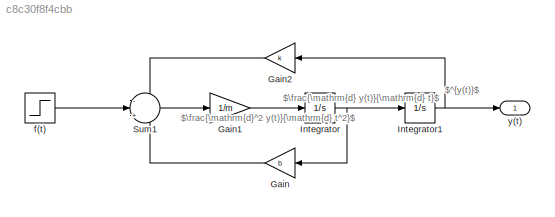
MODEL slx_c8c30f8f4cbb
KIND model
CONFIG AbsTol = auto
CONFIG EnableMultiTasking = off
CONFIG FixedStep = auto
CONFIG MaxStep = auto
CONFIG MinStep = auto
CONFIG RelTol = 1e-3
CONFIG SampleTimeConstraint = Unconstrained
CONFIG SolverName = VariableStepAuto
CONFIG StartTime = 0.0
CONFIG StopTime = 0.1
BLOCK [Gain] Gain
  Gain = b
BLOCK [Gain] Gain1
  Gain = 1/m
BLOCK [Gain] Gain2
  Gain = k
BLOCK [Integrator] Integrator
BLOCK [Integrator] Integrator1
BLOCK [Sum] Sum1
  Inputs = -|+|-
BLOCK [Step] f(t)
  After = f_final
  Before = f_inicial
  SampleTime = 0
  Time = t_inicial
BLOCK [Outport] y(t)
ANNOTATION (root): $\frac{\mathrm{d} y(t)}{\mathrm{d} t}$
ANNOTATION (root): $\frac{\mathrm{d}^2 y(t)}{\mathrm{d} t^2}$
ANNOTATION (root): $^{y(t)}$
LINE Gain1:1 -> Integrator:1
LINE Gain2:1 -> Sum1:1
LINE Gain:1 -> Sum1:3
NET Integrator1:1 -> Gain2:1, y(t):1
NET Integrator:1 -> Gain:1, Integrator1:1
LINE Sum1:1 -> Gain1:1
LINE f(t):1 -> Sum1:2
note: NET lines group one-source signal fan-out (src -> all destinations, sorted); 1:1 wires keep LINE
